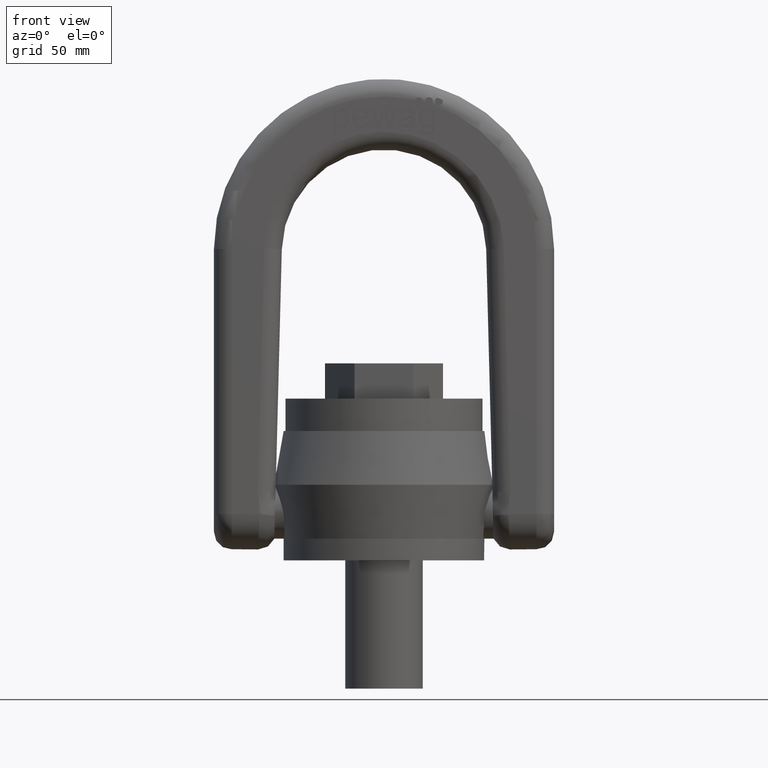
[diagram: clean part render]
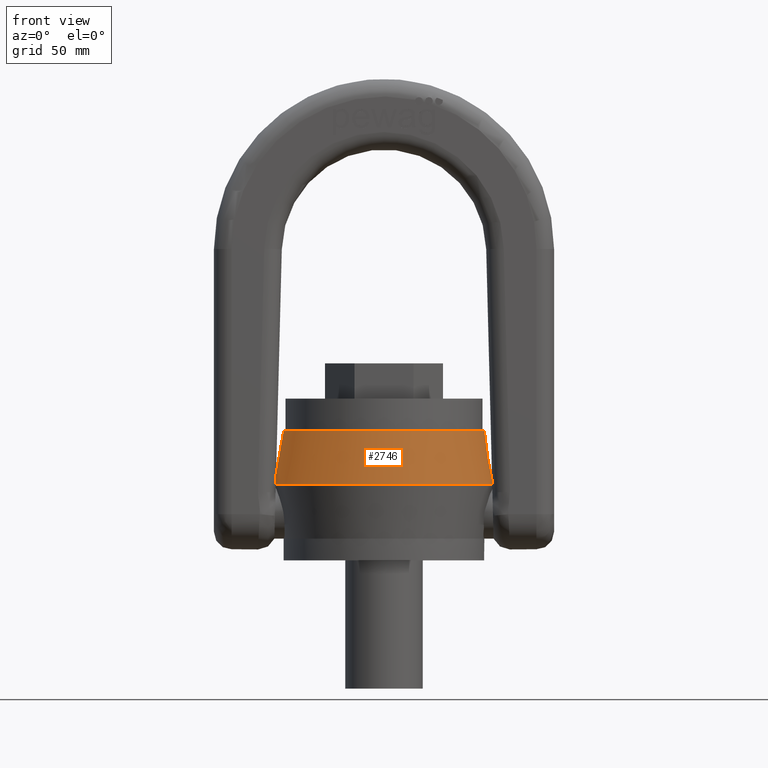
[diagram: same view with one face highlighted and labeled with its STEP entity id]
A machine part, front view. The second image highlights one B-rep face of the part: STEP entity #2746.
In plain terms, the highlighted conical surface has half-angle 10 deg.
Its self-contained STEP definition (entity closure, byte-faithful):
#2412=CONICAL_SURFACE('',#5617,59.1046660915101,10.);
#2746=ADVANCED_FACE('',(#3011,#3012),#2412,.T.);
#3011=FACE_BOUND('',#3072,.T.);
#3012=FACE_BOUND('',#3073,.T.);
#3072=EDGE_LOOP('',(#3346));
#3073=EDGE_LOOP('',(#3347));
#3346=ORIENTED_EDGE('',*,*,#4950,.T.);
#3347=ORIENTED_EDGE('',*,*,#4949,.F.);
#4549=VERTEX_POINT('',#6612);
#4550=VERTEX_POINT('',#6615);
#4949=EDGE_CURVE('',#4549,#4549,#5553,.T.);
#4950=EDGE_CURVE('',#4550,#4550,#5554,.T.);
#5553=CIRCLE('',#5614,59.1046660915101);
#5554=CIRCLE('',#5616,54.);
#5614=AXIS2_PLACEMENT_3D('',#6611,#5830,#5831);
#5616=AXIS2_PLACEMENT_3D('',#6614,#5834,#5835);
#5617=AXIS2_PLACEMENT_3D('',#6616,#5836,#5837);
#5830=DIRECTION('',(0.,0.,-1.));
#5831=DIRECTION('',(-1.,0.,0.));
#5834=DIRECTION('',(0.,0.,-1.));
#5835=DIRECTION('',(-1.,0.,0.));
#5836=DIRECTION('',(0.,0.,-1.));
#5837=DIRECTION('',(-1.,0.,-1.17892288453515E-16));
#6611=CARTESIAN_POINT('',(0.,0.,40.65));
#6612=CARTESIAN_POINT('',(-59.1046660915101,0.,40.65));
#6614=CARTESIAN_POINT('',(0.,0.,69.6));
#6615=CARTESIAN_POINT('',(-54.,0.,69.6));
#6616=CARTESIAN_POINT('',(0.,0.,40.65));